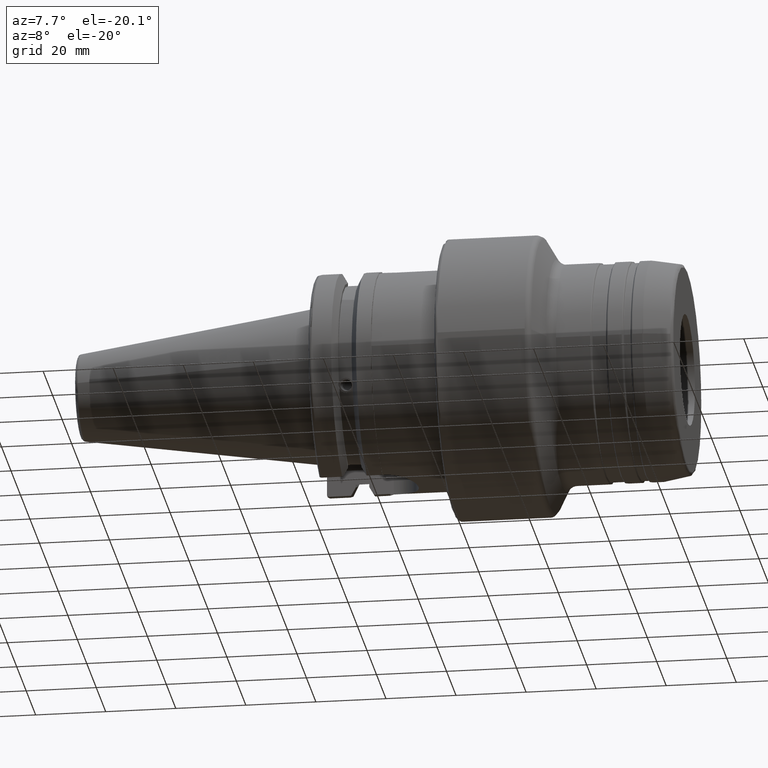
[diagram: clean part render]
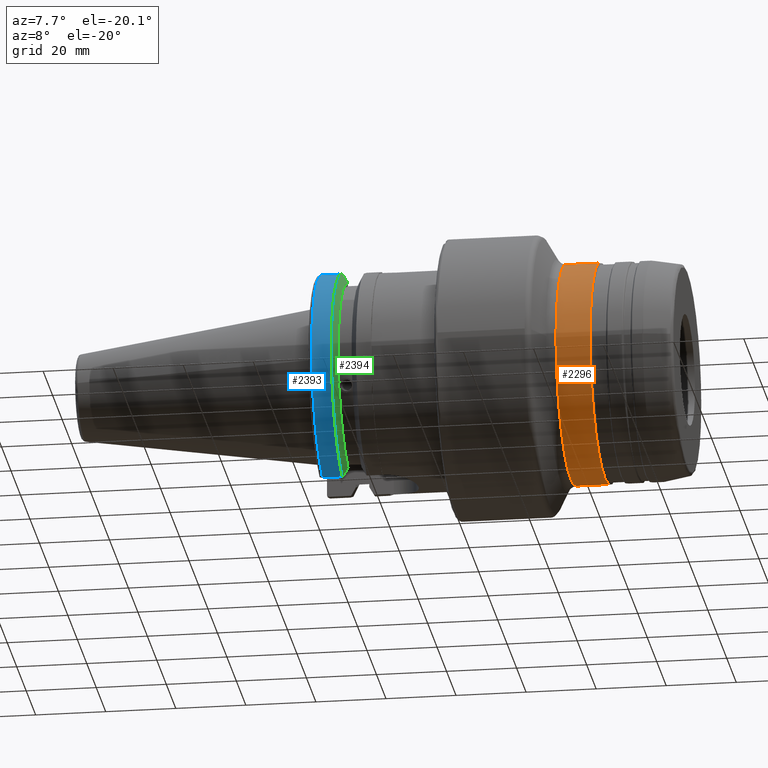
[diagram: same view with three faces highlighted in distinct colors, each labeled with its STEP entity id]
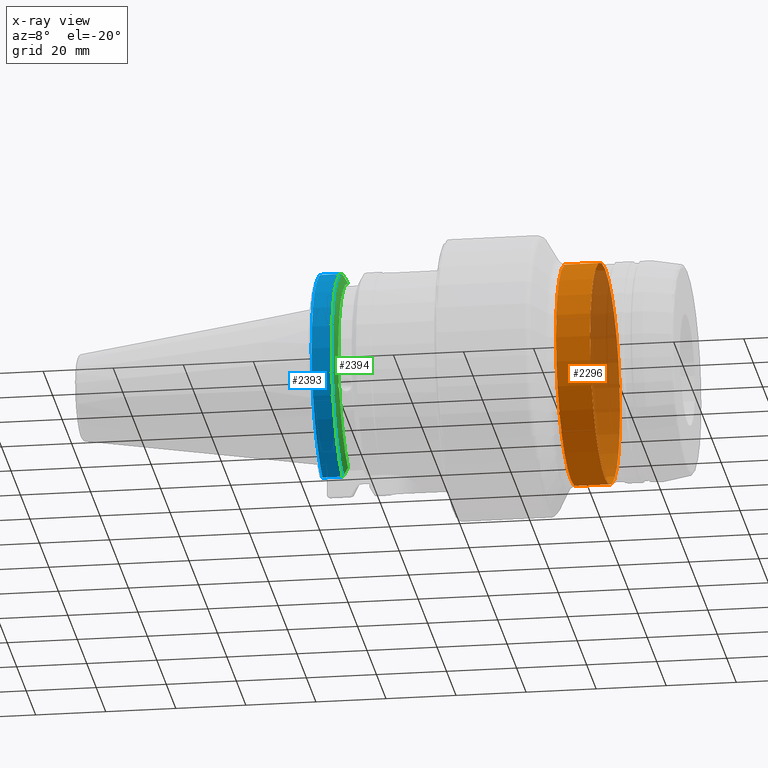
[diagram: x-ray of the same camera — body ghosted, the three highlighted faces saturated]
A machine part, auxiliary view with three faces highlighted in distinct colors.
The next image is the same camera in x-ray (body ghosted, the three faces saturated) — at least one of them is partly hidden behind the body in this view.
Their STEP definitions:

[orange] entity #2296 — the highlighted cylindrical surface (bore or boss wall) has radius 31.5 mm, axis along (1, 0, 0).
#162=CYLINDRICAL_SURFACE('',#2488,31.5);
#211=FACE_OUTER_BOUND('',#331,.T.);
#331=EDGE_LOOP('',(#1627,#1628,#1629,#1630,#1631,#1632,#1633,#1634));
#458=LINE('',#3749,#567);
#567=VECTOR('',#2910,31.5);
#716=CIRCLE('',#2485,31.5);
#717=CIRCLE('',#2486,31.5);
#718=CIRCLE('',#2487,31.5);
#719=CIRCLE('',#2489,31.5);
#720=CIRCLE('',#2490,31.5);
#721=CIRCLE('',#2491,31.5);
#916=VERTEX_POINT('',#3740);
#917=VERTEX_POINT('',#3742);
#918=VERTEX_POINT('',#3744);
#919=VERTEX_POINT('',#3748);
#920=VERTEX_POINT('',#3750);
#921=VERTEX_POINT('',#3752);
#1198=EDGE_CURVE('',#916,#917,#716,.T.);
#1199=EDGE_CURVE('',#917,#918,#717,.T.);
#1200=EDGE_CURVE('',#918,#916,#718,.T.);
#1201=EDGE_CURVE('',#917,#919,#458,.T.);
#1202=EDGE_CURVE('',#920,#919,#719,.T.);
#1203=EDGE_CURVE('',#921,#920,#720,.T.);
#1204=EDGE_CURVE('',#919,#921,#721,.T.);
#1627=ORIENTED_EDGE('',*,*,#1200,.F.);
#1628=ORIENTED_EDGE('',*,*,#1199,.F.);
#1629=ORIENTED_EDGE('',*,*,#1201,.T.);
#1630=ORIENTED_EDGE('',*,*,#1202,.F.);
#1631=ORIENTED_EDGE('',*,*,#1203,.F.);
#1632=ORIENTED_EDGE('',*,*,#1204,.F.);
#1633=ORIENTED_EDGE('',*,*,#1201,.F.);
#1634=ORIENTED_EDGE('',*,*,#1198,.F.);
#2296=ADVANCED_FACE('',(#211),#162,.T.);
#2485=AXIS2_PLACEMENT_3D('',#3743,#2902,#2903);
#2486=AXIS2_PLACEMENT_3D('',#3745,#2904,#2905);
#2487=AXIS2_PLACEMENT_3D('',#3746,#2906,#2907);
#2488=AXIS2_PLACEMENT_3D('',#3747,#2908,#2909);
#2489=AXIS2_PLACEMENT_3D('',#3751,#2911,#2912);
#2490=AXIS2_PLACEMENT_3D('',#3753,#2913,#2914);
#2491=AXIS2_PLACEMENT_3D('',#3754,#2915,#2916);
#2902=DIRECTION('center_axis',(1.,0.,0.));
#2903=DIRECTION('ref_axis',(0.,-1.,1.83697019872103E-16));
#2904=DIRECTION('center_axis',(1.,0.,0.));
#2905=DIRECTION('ref_axis',(0.,-1.,1.83697019872103E-16));
#2906=DIRECTION('center_axis',(1.,0.,0.));
#2907=DIRECTION('ref_axis',(0.,-1.,1.83697019872103E-16));
#2908=DIRECTION('center_axis',(1.,0.,0.));
#2909=DIRECTION('ref_axis',(0.,1.,0.));
#2910=DIRECTION('',(-1.,0.,0.));
#2911=DIRECTION('center_axis',(-1.,0.,0.));
#2912=DIRECTION('ref_axis',(0.,-1.,1.83697019872103E-16));
#2913=DIRECTION('center_axis',(-1.,0.,0.));
#2914=DIRECTION('ref_axis',(0.,-1.,1.83697019872103E-16));
#2915=DIRECTION('center_axis',(-1.,0.,0.));
#2916=DIRECTION('ref_axis',(0.,-1.,1.83697019872103E-16));
#3740=CARTESIAN_POINT('',(81.4803847577293,-3.85763741731416E-15,31.5));
#3742=CARTESIAN_POINT('',(81.4803847577293,-31.5,-3.85763741731416E-15));
#3743=CARTESIAN_POINT('Origin',(81.4803847577293,0.,0.));
#3744=CARTESIAN_POINT('',(81.4803847577293,31.5,-1.92881870865708E-15));
#3745=CARTESIAN_POINT('Origin',(81.4803847577293,0.,0.));
#3746=CARTESIAN_POINT('Origin',(81.4803847577293,0.,0.));
#3747=CARTESIAN_POINT('Origin',(75.8556624327026,0.,0.));
#3748=CARTESIAN_POINT('',(71.7320508075689,-31.5,-3.85763741731416E-15));
#3749=CARTESIAN_POINT('',(75.8556624327026,-31.5,-3.85763741731416E-15));
#3750=CARTESIAN_POINT('',(71.7320508075689,31.5,-9.64409354328541E-15));
#3751=CARTESIAN_POINT('Origin',(71.7320508075689,0.,0.));
#3752=CARTESIAN_POINT('',(71.7320508075689,-3.85763741731416E-15,31.5));
#3753=CARTESIAN_POINT('Origin',(71.7320508075689,0.,0.));
#3754=CARTESIAN_POINT('Origin',(71.7320508075689,0.,0.));

[blue] entity #2393 — the highlighted cylindrical surface (partial cylindrical patch) has radius 31.75 mm, axis along (1, 0, 0).
#193=CYLINDRICAL_SURFACE('',#2746,31.75);
#308=FACE_OUTER_BOUND('',#442,.T.);
#442=EDGE_LOOP('',(#2236,#2237,#2238,#2239));
#532=LINE('',#4481,#641);
#539=LINE('',#4556,#648);
#641=VECTOR('',#3372,10.);
#648=VECTOR('',#3417,10.);
#826=CIRCLE('',#2676,31.75);
#862=CIRCLE('',#2747,31.75);
#1076=VERTEX_POINT('',#4412);
#1077=VERTEX_POINT('',#4421);
#1093=VERTEX_POINT('',#4480);
#1108=VERTEX_POINT('',#4552);
#1415=EDGE_CURVE('',#1076,#1077,#826,.T.);
#1436=EDGE_CURVE('',#1077,#1093,#532,.T.);
#1460=EDGE_CURVE('',#1108,#1076,#539,.T.);
#1504=EDGE_CURVE('',#1093,#1108,#862,.T.);
#2236=ORIENTED_EDGE('',*,*,#1415,.F.);
#2237=ORIENTED_EDGE('',*,*,#1460,.F.);
#2238=ORIENTED_EDGE('',*,*,#1504,.F.);
#2239=ORIENTED_EDGE('',*,*,#1436,.F.);
#2393=ADVANCED_FACE('',(#308),#193,.T.);
#2676=AXIS2_PLACEMENT_3D('',#4422,#3345,#3346);
#2746=AXIS2_PLACEMENT_3D('',#4658,#3522,#3523);
#2747=AXIS2_PLACEMENT_3D('',#4659,#3524,#3525);
#3345=DIRECTION('center_axis',(-1.,0.,0.));
#3346=DIRECTION('ref_axis',(0.,-1.,1.60812264967664E-16));
#3372=DIRECTION('',(1.,0.,0.));
#3417=DIRECTION('',(-1.,0.,0.));
#3522=DIRECTION('center_axis',(1.,0.,0.));
#3523=DIRECTION('ref_axis',(0.,-1.,1.22464679914735E-16));
#3524=DIRECTION('center_axis',(1.,0.,0.));
#3525=DIRECTION('ref_axis',(0.,0.,-1.));
#4412=CARTESIAN_POINT('',(2.,-8.67204822802685,-30.5427254764662));
#4421=CARTESIAN_POINT('',(2.,-8.67204822802685,30.5427254764662));
#4422=CARTESIAN_POINT('Origin',(2.,0.,0.));
#4480=CARTESIAN_POINT('',(7.60793323092436,-8.67204822802685,30.5427254764662));
#4481=CARTESIAN_POINT('',(4.30396661546218,-8.67204822802685,30.5427254764662));
#4552=CARTESIAN_POINT('',(7.60793323092436,-8.67204822802685,-30.5427254764662));
#4556=CARTESIAN_POINT('',(4.30396661546218,-8.67204822802685,-30.5427254764662));
#4658=CARTESIAN_POINT('Origin',(4.30396661546218,0.,0.));
#4659=CARTESIAN_POINT('Origin',(7.60793323092436,0.,0.));

[green] entity #2394 — the highlighted conical surface has half-angle 60 deg.
#24=(
BOUNDED_CURVE()
B_SPLINE_CURVE(2,(#4469,#4470,#4471),.UNSPECIFIED.,.F.,.F.)
B_SPLINE_CURVE_WITH_KNOTS((3,3),(0.,0.276549142796136),.UNSPECIFIED.)
CURVE()
GEOMETRIC_REPRESENTATION_ITEM()
RATIONAL_B_SPLINE_CURVE((1.,1.00095203903316,1.00031614444813))
REPRESENTATION_ITEM('')
);
#25=(
BOUNDED_CURVE()
B_SPLINE_CURVE(2,(#4482,#4483,#4484),.UNSPECIFIED.,.F.,.F.)
B_SPLINE_CURVE_WITH_KNOTS((3,3),(0.,0.0639048713676282),.UNSPECIFIED.)
CURVE()
GEOMETRIC_REPRESENTATION_ITEM()
RATIONAL_B_SPLINE_CURVE((1.,1.00028444218284,1.00047644010574))
REPRESENTATION_ITEM('')
);
#26=(
BOUNDED_CURVE()
B_SPLINE_CURVE(2,(#4553,#4554,#4555),.UNSPECIFIED.,.F.,.F.)
B_SPLINE_CURVE_WITH_KNOTS((3,3),(0.329353533631205,0.393258405001025),
 .UNSPECIFIED.)
CURVE()
GEOMETRIC_REPRESENTATION_ITEM()
RATIONAL_B_SPLINE_CURVE((1.00047644010572,1.00028444218283,1.))
REPRESENTATION_ITEM('')
);
#27=(
BOUNDED_CURVE()
B_SPLINE_CURVE(2,(#4559,#4560,#4561),.UNSPECIFIED.,.F.,.F.)
B_SPLINE_CURVE_WITH_KNOTS((3,3),(0.0550586467392022,0.33160778953585),
 .UNSPECIFIED.)
CURVE()
GEOMETRIC_REPRESENTATION_ITEM()
RATIONAL_B_SPLINE_CURVE((1.00031614445148,1.00095203904325,1.))
REPRESENTATION_ITEM('')
);
#136=B_SPLINE_CURVE_WITH_KNOTS('',3,(#4059,#4060,#4061,#4062,#4063,#4064,
#4065,#4066,#4067,#4068,#4069,#4070,#4071,#4072),.UNSPECIFIED.,.F.,.F.,
(4,2,2,2,2,2,4),(0.451995700189024,0.464547828547663,0.504528771685167,
0.544509714822672,0.584490657960178,0.624471601097683,0.63702372945632),
 .UNSPECIFIED.);
#309=FACE_OUTER_BOUND('',#443,.T.);
#443=EDGE_LOOP('',(#2240,#2241,#2242,#2243,#2244,#2245,#2246,#2247));
#803=CIRCLE('',#2623,28.9593772964944);
#862=CIRCLE('',#2747,31.75);
#863=CIRCLE('',#2749,28.9593772964944);
#1007=VERTEX_POINT('',#4056);
#1008=VERTEX_POINT('',#4058);
#1027=VERTEX_POINT('',#4155);
#1089=VERTEX_POINT('',#4466);
#1090=VERTEX_POINT('',#4468);
#1093=VERTEX_POINT('',#4480);
#1107=VERTEX_POINT('',#4550);
#1108=VERTEX_POINT('',#4552);
#1319=EDGE_CURVE('',#1008,#1007,#136,.T.);
#1345=EDGE_CURVE('',#1008,#1027,#803,.T.);
#1430=EDGE_CURVE('',#1090,#1089,#24,.T.);
#1437=EDGE_CURVE('',#1093,#1089,#25,.T.);
#1459=EDGE_CURVE('',#1107,#1108,#26,.T.);
#1462=EDGE_CURVE('',#1107,#1027,#27,.T.);
#1504=EDGE_CURVE('',#1093,#1108,#862,.T.);
#1505=EDGE_CURVE('',#1090,#1007,#863,.T.);
#2240=ORIENTED_EDGE('',*,*,#1319,.T.);
#2241=ORIENTED_EDGE('',*,*,#1505,.F.);
#2242=ORIENTED_EDGE('',*,*,#1430,.T.);
#2243=ORIENTED_EDGE('',*,*,#1437,.F.);
#2244=ORIENTED_EDGE('',*,*,#1504,.T.);
#2245=ORIENTED_EDGE('',*,*,#1459,.F.);
#2246=ORIENTED_EDGE('',*,*,#1462,.T.);
#2247=ORIENTED_EDGE('',*,*,#1345,.F.);
#2279=CONICAL_SURFACE('',#2748,30.3546886482472,1.0471975511966);
#2394=ADVANCED_FACE('',(#309),#2279,.T.);
#2623=AXIS2_PLACEMENT_3D('',#4156,#3217,#3218);
#2747=AXIS2_PLACEMENT_3D('',#4659,#3524,#3525);
#2748=AXIS2_PLACEMENT_3D('',#4660,#3526,#3527);
#2749=AXIS2_PLACEMENT_3D('',#4661,#3528,#3529);
#3217=DIRECTION('center_axis',(1.,0.,0.));
#3218=DIRECTION('ref_axis',(0.,0.,-1.));
#3524=DIRECTION('center_axis',(1.,0.,0.));
#3525=DIRECTION('ref_axis',(0.,0.,-1.));
#3526=DIRECTION('center_axis',(-1.,0.,0.));
#3527=DIRECTION('ref_axis',(0.,-1.,-1.22464679914735E-16));
#3528=DIRECTION('center_axis',(1.,0.,0.));
#3529=DIRECTION('ref_axis',(0.,0.,-1.));
#4056=CARTESIAN_POINT('',(9.2191,-27.4956274489925,-9.09043478536245));
#4058=CARTESIAN_POINT('',(9.2191,-26.9060914640648,-10.7101715919071));
#4059=CARTESIAN_POINT('Ctrl Pts',(9.2191,-26.9060914640648,-10.7101715919071));
#4060=CARTESIAN_POINT('Ctrl Pts',(9.20497959280038,-26.9406927482839,-10.6893765730703));
#4061=CARTESIAN_POINT('Ctrl Pts',(9.19150701821433,-26.9744191989197,-10.6676007180673));
#4062=CARTESIAN_POINT('Ctrl Pts',(9.13811855884095,-27.1113422433189,-10.5723885976054));
#4063=CARTESIAN_POINT('Ctrl Pts',(9.09998029158246,-27.2180531796526,-10.4801333026531));
#4064=CARTESIAN_POINT('Ctrl Pts',(9.04778935539424,-27.3968610665578,-10.2639559818059));
#4065=CARTESIAN_POINT('Ctrl Pts',(9.0341,-27.4684373304961,-10.139516340139));
#4066=CARTESIAN_POINT('Ctrl Pts',(9.0341,-27.559599249844,-9.8890510252165));
#4067=CARTESIAN_POINT('Ctrl Pts',(9.04778935539424,-27.5847569104122,-9.74771639360671));
#4068=CARTESIAN_POINT('Ctrl Pts',(9.09998029158246,-27.5867382255984,-9.46717946402648));
#4069=CARTESIAN_POINT('Ctrl Pts',(9.13811855884095,-27.5642934663232,-9.32791534028655));
#4070=CARTESIAN_POINT('Ctrl Pts',(9.19150701821434,-27.5206055003512,-9.16696618806877));
#4071=CARTESIAN_POINT('Ctrl Pts',(9.20497959280038,-27.5087667900418,-9.12860597076218));
#4072=CARTESIAN_POINT('Ctrl Pts',(9.2191,-27.4956274489925,-9.09043478536245));
#4155=CARTESIAN_POINT('',(9.2191,-8.19,-27.7771386827498));
#4156=CARTESIAN_POINT('Origin',(9.2191,0.,0.));
#4466=CARTESIAN_POINT('',(7.88668530351257,-8.19,30.1755016258903));
#4468=CARTESIAN_POINT('',(9.2191,-8.19,27.7771386827498));
#4469=CARTESIAN_POINT('Ctrl Pts',(9.2191,-8.19,27.7771386827498));
#4470=CARTESIAN_POINT('Ctrl Pts',(8.58046356152393,-8.19,28.9303689539705));
#4471=CARTESIAN_POINT('Ctrl Pts',(7.88668530351257,-8.19,30.1755016258903));
#4480=CARTESIAN_POINT('',(7.60793323092436,-8.67204822802685,30.5427254764662));
#4482=CARTESIAN_POINT('Ctrl Pts',(7.60793323092436,-8.67204822802686,30.5427254764662));
#4483=CARTESIAN_POINT('Ctrl Pts',(7.74899148121626,-8.42917748262648,30.357706789263));
#4484=CARTESIAN_POINT('Ctrl Pts',(7.88668530351257,-8.19,30.1755016258903));
#4550=CARTESIAN_POINT('',(7.88668530351256,-8.19,-30.1755016258903));
#4552=CARTESIAN_POINT('',(7.60793323092436,-8.67204822802685,-30.5427254764662));
#4553=CARTESIAN_POINT('Ctrl Pts',(7.88668530351256,-8.19,-30.1755016258903));
#4554=CARTESIAN_POINT('Ctrl Pts',(7.74899148121159,-8.42917748263467,-30.3577067892692));
#4555=CARTESIAN_POINT('Ctrl Pts',(7.60793323092435,-8.67204822802687,-30.5427254764662));
#4559=CARTESIAN_POINT('Ctrl Pts',(7.88668530351256,-8.19,-30.1755016258903));
#4560=CARTESIAN_POINT('Ctrl Pts',(8.5804635615235,-8.19,-28.9303689539712));
#4561=CARTESIAN_POINT('Ctrl Pts',(9.2191,-8.19,-27.7771386827498));
#4659=CARTESIAN_POINT('Origin',(7.60793323092436,0.,0.));
#4660=CARTESIAN_POINT('Origin',(8.41351661546218,0.,0.));
#4661=CARTESIAN_POINT('Origin',(9.2191,0.,0.));